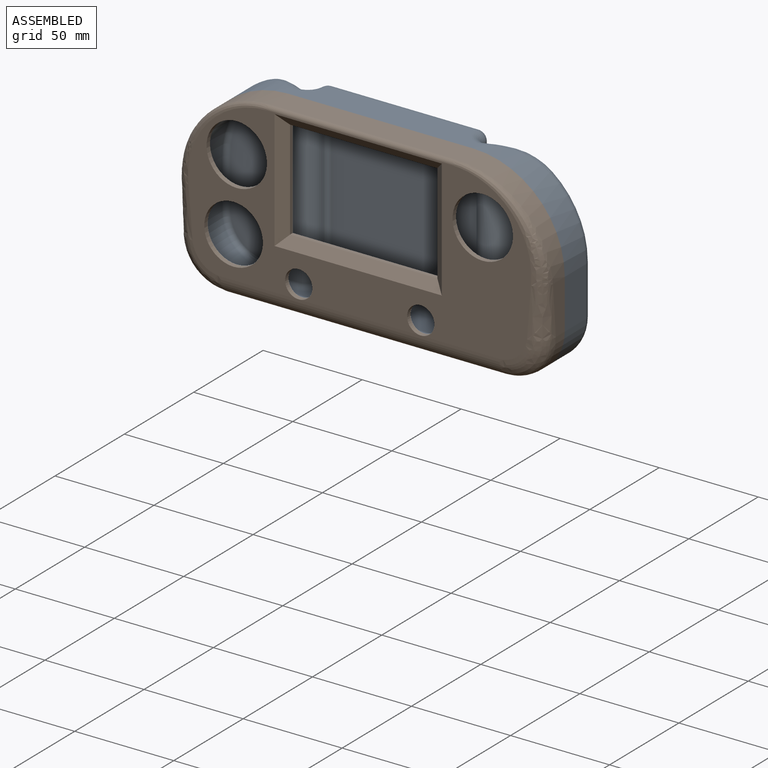
[diagram: assembled view]
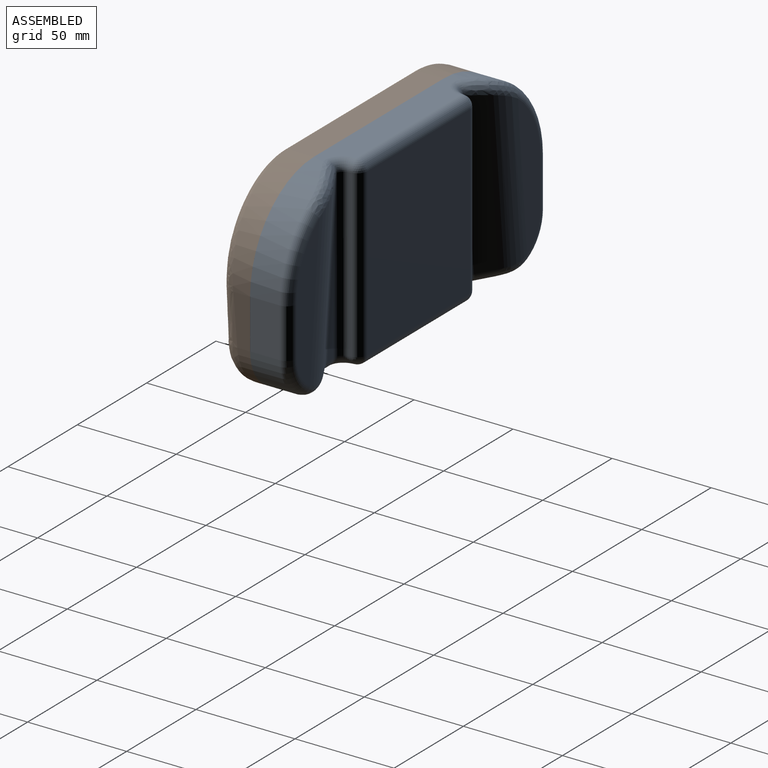
[diagram: assembled view, second angle]
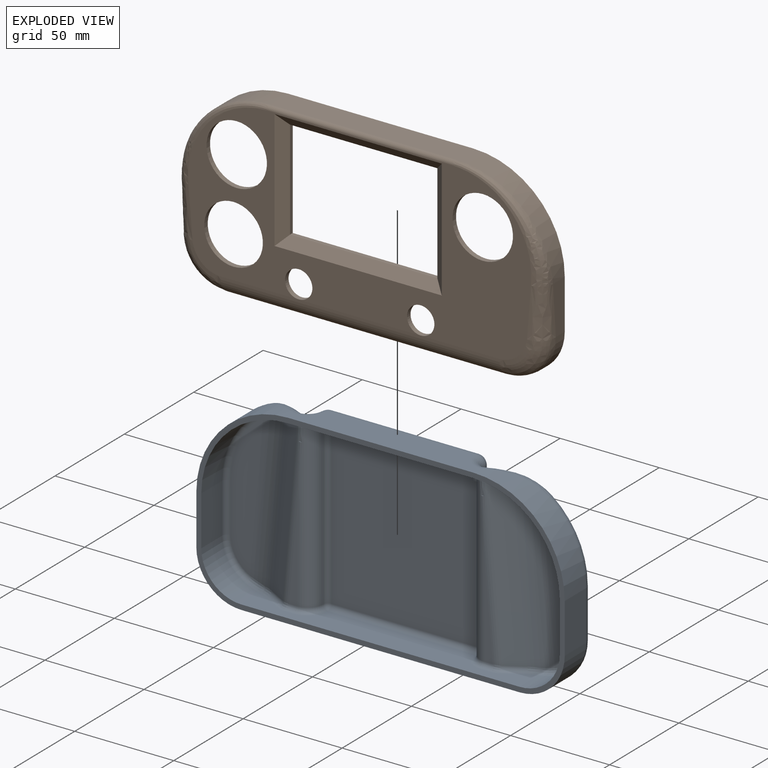
[diagram: exploded view]
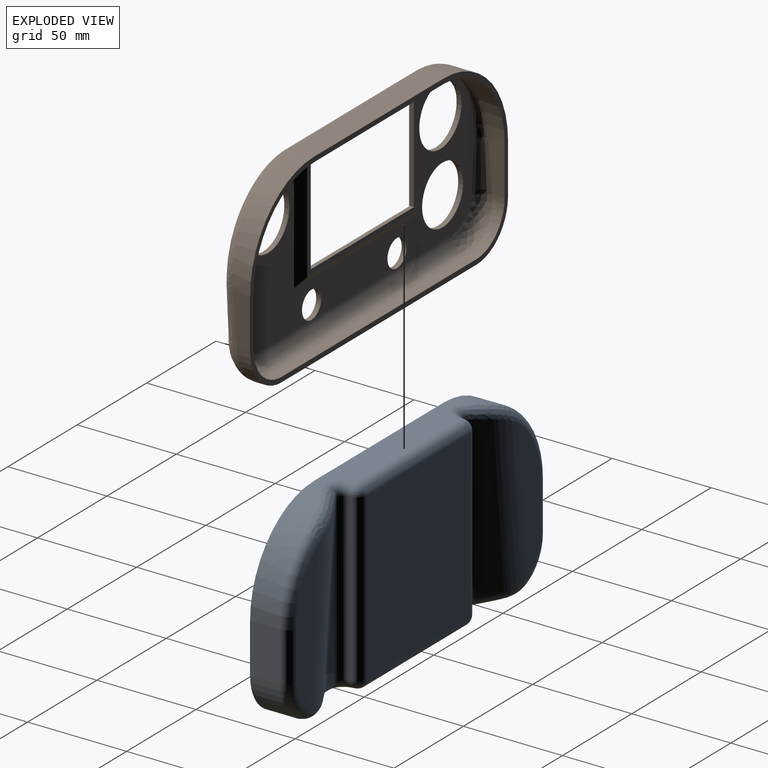
[diagram: exploded view, second angle]
ASSEMBLY  parts=2 mates=4
PART A: 139 faces, bbox 193.6x20.2x99.6 mm
  f0: plane 186x94mm, normal (0,-1,0), area 1232.3mm2, adj f4,f5,f6,f7,f8,f9,f10,f11
  f1: plane 73.84x16.38mm, normal (0,1,0), area 763.4mm2, adj f25,f35,f37,f39
  f2: plane 84x74.08mm, normal (0,1,0), area 6222.9mm2, adj f18,f21,f34,f53
  f3: plane 73.84x16.38mm, normal (0,1,0), area 763.4mm2, adj f24,f52,f54,f56
  f4: plane 93.5x15mm, normal (0,0,1), area 1254.1mm2, adj f0,f5,f11,f47,f49,f53,f57,f59
  f5: cylinder r=46.25mm len=46.78mm, axis (0,1,0), area 984.4mm2, adj f0,f4,f6,f56,f58,f60,f61,f69
  f6: plane 25x15mm, normal (-1,0,0), area 375mm2, adj f0,f5,f7,f54
  f7: cylinder r=22.75mm len=22.75mm, axis (0,1,0), area 529.3mm2, adj f0,f6,f8,f50,f52
  f8: plane 140.5x15mm, normal (0,0,-1), area 1638mm2, adj f0,f7,f9,f26,f27,f28,f29,f30
  f9: cylinder r=22.75mm len=22.75mm, axis (0,1,0), area 529.3mm2, adj f0,f8,f10,f33,f35
  f10: plane 25x15mm, normal (1,0,0), area 375mm2, adj f0,f9,f11,f37
  f11: cylinder r=46.25mm len=46.78mm, axis (0,1,0), area 984.4mm2, adj f0,f4,f10,f39,f41,f43,f45,f65
  f12: plane 83.93x16.58mm, normal (0.5,0.87,-0.04), area 888.2mm2, adj f19,f24,f46,f60
  f13: plane 84x1.74mm, normal (-0.98,0.17,0), area 148.1mm2, adj f18,f20,f38,f57
  f14: plane 48.53x4.25mm, normal (0,1,0), area 103mm2, adj f19,f20,f42
  f15: plane 83.93x16.58mm, normal (-0.5,0.87,-0.04), area 888.2mm2, adj f23,f25,f29,f43
  f16: plane 84x1.74mm, normal (0.98,0.17,0), area 148.1mm2, adj f21,f22,f30,f49
  f17: plane 48.53x4.25mm, normal (0,1,0), area 103mm2, adj f22,f23,f26
  f18: cylinder r=5mm len=84mm, axis (0,0,-1), area 586.4mm2, adj f2,f13,f36,f55
  f19: cylinder r=5mm len=84.3mm, axis (0.09,0,1), area 186mm2, adj f12,f14,f44,f61,f66
  f20: cylinder r=5mm len=84mm, axis (0,0,-1), area 551.7mm2, adj f13,f14,f40,f59,f66,f67
  f21: cylinder r=5mm len=84mm, axis (0,0,-1), area 586.4mm2, adj f2,f16,f32,f51
  f22: cylinder r=5mm len=84mm, axis (0,0,-1), area 551.7mm2, adj f16,f17,f28,f47,f62,f63
  f23: cylinder r=5mm len=84.3mm, axis (-0.09,0,1), area 186mm2, adj f15,f17,f27,f45,f62
  f24: cylinder r=30mm len=84mm, axis (0.09,0,1), area 1236.2mm2, adj f3,f12,f48,f50,f58
  f25: cylinder r=30mm len=84mm, axis (-0.09,0,1), area 1236.2mm2, adj f1,f15,f31,f33,f41
  f26: cylinder r=5mm len=5mm, axis (-1,0,0), area 33.3mm2, adj f8,f17,f27,f28
  f27: bspline ~8.2x6.17mm, area 27.9mm2, adj f8,f23,f26,f29
  f28: torus R=10mm, axis (0,0,1), area 74.8mm2, adj f8,f22,f26,f30
  f29: cylinder r=5mm len=11.72mm, axis (-0.87,-0.5,0), area 81.3mm2, adj f8,f15,f27,f31
  f30: cylinder r=5mm len=5.23mm, axis (0.17,-0.98,0), area 13.8mm2, adj f8,f16,f28,f32
  f31: bspline ~13.91x10.15mm, area 43.2mm2, adj f8,f25,f29,f33
  f32: sphere r=5mm, area 22.2mm2, adj f21,f30,f34
  f33: bspline ~16.74x7.83mm, area 84.6mm2, adj f9,f25,f31,f35
  f34: cylinder r=5mm len=74.08mm, axis (1,0,0), area 581.8mm2, adj f2,f8,f32,f36
  f35: torus R=17.75mm, axis (0,-1,0), area 183.1mm2, adj f1,f9,f33,f37
  f36: sphere r=5mm, area 34.9mm2, adj f18,f34,f38
  f37: cylinder r=5mm len=25mm, axis (0,0,1), area 196.3mm2, adj f1,f10,f35,f39
  f38: cylinder r=5mm len=5.23mm, axis (-0.17,-0.98,0), area 13.8mm2, adj f8,f13,f36,f40
  f39: torus R=41.25mm, axis (0,-1,0), area 322.3mm2, adj f1,f11,f37,f41
  f40: torus R=10mm, axis (0,0,1), area 74.8mm2, adj f8,f20,f38,f42
  f41: bspline ~25.18x15.56mm, area 151.6mm2, adj f11,f25,f39,f43
  f42: cylinder r=5mm len=5mm, axis (-1,0,0), area 33.3mm2, adj f8,f14,f40,f44
  f43: bspline ~18.45x13.46mm, area 98.5mm2, adj f11,f15,f41,f45
  f44: bspline ~8.2x6.17mm, area 27.9mm2, adj f8,f19,f42,f46
  f45: bspline ~6.86x6.79mm, area 15.6mm2, adj f11,f23,f43,f63,f64
  f46: cylinder r=5mm len=11.72mm, axis (0.87,-0.5,0), area 81.3mm2, adj f8,f12,f44,f48
  f47: torus R=10mm, axis (0,0,1), area 62.7mm2, adj f4,f22,f49,f64,f65
  f48: bspline ~13.91x10.15mm, area 43.2mm2, adj f8,f24,f46,f50
  f49: cylinder r=5mm len=5.23mm, axis (-0.17,0.98,0), area 13.8mm2, adj f4,f16,f47,f51
  f50: bspline ~16.74x7.83mm, area 84.6mm2, adj f7,f24,f48,f52
  f51: sphere r=5mm, area 22.2mm2, adj f21,f49,f53
  f52: torus R=17.75mm, axis (0,-1,0), area 183.1mm2, adj f3,f7,f50,f54
  f53: cylinder r=5mm len=74.08mm, axis (-1,0,0), area 581.8mm2, adj f2,f4,f51,f55
  f54: cylinder r=5mm len=25mm, axis (0,0,-1), area 196.3mm2, adj f3,f6,f52,f56
  f55: sphere r=5mm, area 49.2mm2, adj f18,f53,f57
  f56: torus R=41.25mm, axis (0,-1,0), area 322.3mm2, adj f3,f5,f54,f58
  f57: cylinder r=5mm len=5.23mm, axis (0.17,0.98,0), area 13.8mm2, adj f4,f13,f55,f59
  f58: bspline ~25.18x15.56mm, area 151.6mm2, adj f5,f24,f56,f60
  f59: torus R=10mm, axis (0,0,1), area 62.7mm2, adj f4,f20,f57,f68,f69
  f60: bspline ~18.45x13.46mm, area 98.5mm2, adj f5,f12,f58,f61
  f61: bspline ~6.34x5.86mm, area 15.6mm2, adj f5,f19,f60,f67,f68
  f62: bspline ~45.87x2.5mm, area 9.1mm2, adj f22,f23,f63
  f63: bspline ~0.79x0.77mm, area 0.2mm2, adj f22,f45,f62,f64
  f64: bspline ~5.22x5.2mm, area 3.2mm2, adj f45,f47,f63,f65
  f65: bspline ~0.75x0.33mm, area 0mm2, adj f11,f47,f64
  f66: bspline ~45.87x2.5mm, area 9.1mm2, adj f19,f20,f67
  f67: bspline ~0.82x0.77mm, area 0.2mm2, adj f20,f61,f66,f68
  f68: bspline ~5.23x5.22mm, area 3.2mm2, adj f59,f61,f67,f69
  f69: bspline ~0.75x0.33mm, area 0mm2, adj f5,f59,f68
  f70: plane 73.84x16.38mm, normal (0,-1,0), area 763.4mm2, adj f94,f104,f106,f108
  f71: plane 84x74.08mm, normal (0,-1,0), area 6222.9mm2, adj f87,f90,f103,f122
  f72: plane 73.84x16.38mm, normal (0,-1,0), area 763.4mm2, adj f93,f121,f123,f125
  f73: plane 93.5x15mm, normal (0,0,-1), area 1254.1mm2, adj f0,f74,f80,f116,f118,f122,f126,f128
  f74: cylinder r=43.75mm len=44.25mm, axis (0,1,0), area 931.2mm2, adj f0,f73,f75,f125,f127,f129,f130,f138
  f75: plane 25x15mm, normal (1,0,0), area 375mm2, adj f0,f74,f76,f123
  f76: cylinder r=20.25mm len=20.25mm, axis (0,1,0), area 471.1mm2, adj f0,f75,f77,f119,f121
  f77: plane 140.5x15mm, normal (0,0,1), area 1638mm2, adj f0,f76,f78,f95,f96,f97,f98,f99
  f78: cylinder r=20.25mm len=20.25mm, axis (0,1,0), area 471.1mm2, adj f0,f77,f79,f102,f104
  f79: plane 25x15mm, normal (-1,0,0), area 375mm2, adj f0,f78,f80,f106
  f80: cylinder r=43.75mm len=44.25mm, axis (0,1,0), area 931.2mm2, adj f0,f73,f79,f108,f110,f112,f114,f134
  f81: plane 83.93x16.58mm, normal (-0.5,-0.87,0.04), area 888.2mm2, adj f88,f93,f115,f129
  f82: plane 84x1.74mm, normal (0.98,-0.17,0), area 148.1mm2, adj f87,f89,f107,f126
  f83: plane 48.53x4.25mm, normal (0,-1,0), area 103mm2, adj f88,f89,f111
  f84: plane 83.93x16.58mm, normal (0.5,-0.87,0.04), area 888.2mm2, adj f92,f94,f98,f112
  f85: plane 84x1.74mm, normal (-0.98,-0.17,0), area 148.1mm2, adj f90,f91,f99,f118
  f86: plane 48.53x4.25mm, normal (0,-1,0), area 103mm2, adj f91,f92,f95
  f87: cylinder r=2.5mm len=84mm, axis (0,0,-1), area 293.2mm2, adj f71,f82,f105,f124
  f88: cylinder r=7.5mm len=84.41mm, axis (0.09,0,1), area 278.3mm2, adj f81,f83,f113,f130,f135
  f89: cylinder r=7.5mm len=84mm, axis (0,0,-1), area 827.5mm2, adj f82,f83,f109,f128,f135,f136
  f90: cylinder r=2.5mm len=84mm, axis (0,0,-1), area 293.2mm2, adj f71,f85,f101,f120
  f91: cylinder r=7.5mm len=84mm, axis (0,0,-1), area 827.5mm2, adj f85,f86,f97,f116,f131,f132
  f92: cylinder r=7.5mm len=84.41mm, axis (-0.09,0,1), area 278.3mm2, adj f84,f86,f96,f114,f131
  f93: cylinder r=27.5mm len=83.89mm, axis (0.09,0,1), area 1133.2mm2, adj f72,f81,f117,f119,f127
  f94: cylinder r=27.5mm len=83.89mm, axis (-0.09,0,1), area 1133.2mm2, adj f70,f84,f100,f102,f110
  f95: cylinder r=2.5mm len=4.25mm, axis (-1,0,0), area 16.7mm2, adj f77,f86,f96,f97
  f96: bspline ~8.2x4.25mm, area 17.2mm2, adj f77,f92,f95,f98
  f97: torus R=10mm, axis (0,0,1), area 46.1mm2, adj f77,f91,f95,f99
  f98: cylinder r=2.5mm len=10.48mm, axis (-0.87,-0.5,0), area 40.7mm2, adj f77,f84,f96,f100
  f99: cylinder r=2.5mm len=2.77mm, axis (0.17,-0.98,0), area 6.9mm2, adj f77,f85,f97,f101
  f100: bspline ~12.31x7.7mm, area 20.4mm2, adj f77,f94,f98,f102
  f101: sphere r=2.5mm, area 9.1mm2, adj f90,f99,f103
  f102: bspline ~14.1x5.28mm, area 37.5mm2, adj f78,f94,f100,f104
  f103: cylinder r=2.5mm len=74.08mm, axis (1,0,0), area 290.9mm2, adj f71,f77,f101,f105
  f104: torus R=17.75mm, axis (0,-1,0), area 84.6mm2, adj f70,f78,f102,f106
  f105: sphere r=2.5mm, area 12.3mm2, adj f87,f103,f107
  f106: cylinder r=2.5mm len=25mm, axis (0,0,1), area 98.2mm2, adj f70,f79,f104,f108
  f107: cylinder r=2.5mm len=2.77mm, axis (-0.17,-0.98,0), area 6.9mm2, adj f77,f82,f105,f109
  f108: torus R=41.25mm, axis (0,-1,0), area 155.4mm2, adj f70,f80,f106,f110
  f109: torus R=10mm, axis (0,0,1), area 46.1mm2, adj f77,f89,f107,f111
  f110: bspline ~21.88x12.76mm, area 70.2mm2, adj f80,f94,f108,f112
  f111: cylinder r=2.5mm len=4.25mm, axis (-1,0,0), area 16.7mm2, adj f77,f83,f109,f113
  f112: bspline ~16.28x10.73mm, area 47.8mm2, adj f80,f84,f110,f114
  f113: bspline ~8.2x4.25mm, area 17.2mm2, adj f77,f88,f111,f115
  f114: bspline ~6.18x4.69mm, area 8.8mm2, adj f80,f92,f112,f132,f133
  f115: cylinder r=2.5mm len=10.48mm, axis (0.87,-0.5,0), area 40.7mm2, adj f77,f81,f113,f117
  f116: torus R=10mm, axis (0,0,1), area 38.3mm2, adj f73,f91,f118,f133,f134
  f117: bspline ~12.31x7.7mm, area 20.4mm2, adj f77,f93,f115,f119
  f118: cylinder r=2.5mm len=2.77mm, axis (-0.17,0.98,0), area 6.9mm2, adj f73,f85,f116,f120
  f119: bspline ~14.1x5.29mm, area 37.5mm2, adj f76,f93,f117,f121
  f120: sphere r=2.5mm, area 5.6mm2, adj f90,f118,f122
  f121: torus R=17.75mm, axis (0,-1,0), area 84.6mm2, adj f72,f76,f119,f123
  f122: cylinder r=2.5mm len=74.08mm, axis (-1,0,0), area 290.9mm2, adj f71,f73,f120,f124
  f123: cylinder r=2.5mm len=25mm, axis (0,0,-1), area 98.2mm2, adj f72,f75,f121,f125
  f124: sphere r=2.5mm, area 8.7mm2, adj f87,f122,f126
  f125: torus R=41.25mm, axis (0,-1,0), area 155.4mm2, adj f72,f74,f123,f127
  f126: cylinder r=2.5mm len=2.77mm, axis (0.17,0.98,0), area 6.9mm2, adj f73,f82,f124,f128
  f127: bspline ~21.88x12.76mm, area 70.2mm2, adj f74,f93,f125,f129
  f128: torus R=10mm, axis (0,0,1), area 38.3mm2, adj f73,f89,f126,f137,f138
  f129: bspline ~16.28x10.73mm, area 47.8mm2, adj f74,f81,f127,f130
  f130: bspline ~5.24x4.11mm, area 8.8mm2, adj f74,f88,f129,f136,f137
  f131: bspline ~45.98x3.75mm, area 31.9mm2, adj f91,f92,f132
  f132: bspline ~2.77x1.1mm, area 0.4mm2, adj f91,f114,f131,f133
  f133: bspline ~2.96x2.69mm, area 5.6mm2, adj f114,f116,f132,f134
  f134: bspline ~0.76x0.33mm, area 0mm2, adj f80,f116,f133
  f135: bspline ~45.98x3.75mm, area 31.9mm2, adj f88,f89,f136
  f136: bspline ~2.77x1.1mm, area 0.4mm2, adj f89,f130,f135,f137
  f137: bspline ~2.98x2.69mm, area 5.6mm2, adj f128,f130,f136,f138
  f138: bspline ~0.76x0.33mm, area 0mm2, adj f74,f128,f137
PART B: 52 faces, bbox 191x20x99 mm
  f0: plane 175.18x83.72mm, normal (0,-1,0), area 5826.3mm2, adj f11,f12,f13,f14,f15,f16,f17,f18
  f1: plane 175.24x83.22mm, normal (0,1,0), area 5403.7mm2, adj f19,f20,f21,f27,f28,f29,f30,f31
  f2: plane 186x94mm, normal (0,1,0), area 1232.3mm2, adj f3,f4,f5,f6,f7,f8,f9,f10
  f3: plane 93.5x13mm, normal (0,0,1), area 1215.5mm2, adj f2,f4,f10,f13
  f4: cylinder r=46.25mm len=46.25mm, axis (0,1,0), area 779.9mm2, adj f2,f3,f5,f11
  f5: plane 26.58x10.05mm, normal (-1,0,0), area 184.9mm2, adj f2,f4,f6,f12
  f6: cylinder r=22.75mm len=22.75mm, axis (0,1,0), area 203.8mm2, adj f2,f5,f7,f14
  f7: plane 140.5x5mm, normal (0,0,-1), area 702.5mm2, adj f2,f6,f8,f16
  f8: cylinder r=22.75mm len=22.75mm, axis (0,1,0), area 203.8mm2, adj f2,f7,f9,f18
  f9: plane 26.72x10.19mm, normal (1,0,0), area 185mm2, adj f2,f8,f10,f17
  f10: cylinder r=46.25mm len=46.25mm, axis (0,1,0), area 779.9mm2, adj f2,f3,f9,f15
  f11: bspline ~46.25x46.25mm, area 411.1mm2, adj f0,f4,f12,f13
  f12: bspline ~25.79x8.59mm, area 301.5mm2, adj f0,f5,f11,f14
  f13: cylinder r=2mm len=93.5mm, axis (1,0,0), area 293.7mm2, adj f0,f3,f11,f15
  f14: bspline ~22.75x22.75mm, area 449.5mm2, adj f0,f6,f12,f16
  f15: bspline ~46.25x46.25mm, area 411.2mm2, adj f0,f10,f13,f17
  f16: cylinder r=10mm len=140.5mm, axis (-1,0,0), area 2207mm2, adj f0,f7,f14,f18
  f17: bspline ~25.78x8.59mm, area 301.4mm2, adj f0,f9,f15,f18
  f18: bspline ~22.75x22.75mm, area 449.9mm2, adj f0,f8,f16,f17
  f19: offset ~47.03x32.97mm, area 138.9mm2, adj f1,f27,f32
  f20: plane 93.5x12.5mm, normal (0,0,-1), area 1071.7mm2, adj f1,f2,f21,f27,f39,f40,f42
  f21: cylinder r=43.75mm len=43.75mm, axis (0,1,0), area 759.7mm2, adj f1,f2,f20,f22,f28
  f22: plane 26.58x10.05mm, normal (1,0,0), area 184.9mm2, adj f2,f21,f23,f29
  f23: cylinder r=20.25mm len=20.25mm, axis (0,1,0), area 181.4mm2, adj f2,f22,f24,f30
  f24: plane 140.5x5mm, normal (0,0,1), area 702.5mm2, adj f2,f23,f25,f31
  f25: cylinder r=20.25mm len=20.25mm, axis (0,1,0), area 181.4mm2, adj f2,f24,f26,f33
  f26: plane 26.72x10.19mm, normal (-1,0,0), area 185mm2, adj f2,f25,f27,f32
  f27: cylinder r=43.75mm len=43.75mm, axis (0,1,0), area 759.3mm2, adj f1,f2,f19,f20,f26
  f28: offset ~46.8x32.53mm, area 132.7mm2, adj f1,f21,f29
  f29: offset ~30.79x13.59mm, area 202.3mm2, adj f1,f22,f28,f30
  f30: offset ~27.75x27.75mm, area 304.4mm2, adj f1,f23,f29,f31
  f31: cylinder r=7.5mm len=140.5mm, axis (-1,0,0), area 1655.2mm2, adj f1,f24,f30,f33
  f32: offset ~30.78x13.59mm, area 202.2mm2, adj f1,f19,f26,f33
  f33: offset ~27.75x27.75mm, area 306.1mm2, adj f1,f25,f31,f32
  f34: plane 74.4x2mm, normal (0,0,1), area 148.8mm2, adj f35,f37,f38,f44
  f35: plane 50.2x2mm, normal (-1,0,0), area 100.4mm2, adj f34,f36,f38,f43
  f36: plane 74.4x2mm, normal (0,0,-1), area 148.8mm2, adj f35,f37,f38,f45
  f37: plane 50.2x2mm, normal (1,0,0), area 100.4mm2, adj f34,f36,f38,f46
  f38: plane 80.23x56.03mm, normal (0,1,0), area 759.7mm2, adj f34,f35,f36,f37,f39,f40,f41,f42
  f39: plane 62.3x3.5mm, normal (-0.78,0.62,0), area 266.5mm2, adj f1,f20,f38,f40,f41
  f40: plane 85.09x2.38mm, normal (0,0.62,0.78), area 251.4mm2, adj f20,f38,f39,f42
  f41: plane 87.4x4.38mm, normal (0,0.78,-0.62), area 469.6mm2, adj f1,f38,f39,f42
  f42: plane 62.3x4.38mm, normal (0.62,0.78,0), area 333.2mm2, adj f1,f20,f38,f40,f41
  f43: plane 60.2x5mm, normal (-0.62,-0.78,0), area 353.5mm2, adj f0,f35,f44,f45
  f44: plane 84.4x5mm, normal (0,-0.78,0.62), area 508.4mm2, adj f0,f34,f43,f46
  f45: plane 84.4x5mm, normal (0,-0.78,-0.62), area 508.4mm2, adj f0,f36,f43,f46
  f46: plane 60.2x5mm, normal (0.62,-0.78,0), area 353.5mm2, adj f0,f37,f44,f45
  f47: cylinder r=15.25mm len=30.5mm, axis (0,-1,0), area 239.5mm2, adj f0,f1
  f48: cylinder r=15.25mm len=30.5mm, axis (0,-1,0), area 239.5mm2, adj f0,f1
  f49: cylinder r=14.8mm len=29.6mm, axis (0,-1,0), area 232.5mm2, adj f0,f1
  f50: cylinder r=6.9mm len=13.8mm, axis (0,-1,0), area 108.4mm2, adj f0,f1
  f51: cylinder r=6.9mm len=13.8mm, axis (0,-1,0), area 108.4mm2, adj f0,f1
PLACE A t=(-37.46,-48.8,21.79)mm
PLACE B t=(-37.46,-68.8,21.79)mm
MATE planar B.f3 <-> A.f4  axis (0,0,1) through (-37.46,-75.3,68.79)mm
MATE planar B.f9 <-> A.f10  axis (1,0,0) through (55.54,-72.52,10.62)mm
MATE planar B.f5 <-> A.f6  axis (-1,0,0) through (-130.46,-72.52,10.62)mm
MATE planar A.f0 <-> B.f2  axis (0,-1,0) through (-37.46,-68.8,19.47)mm
